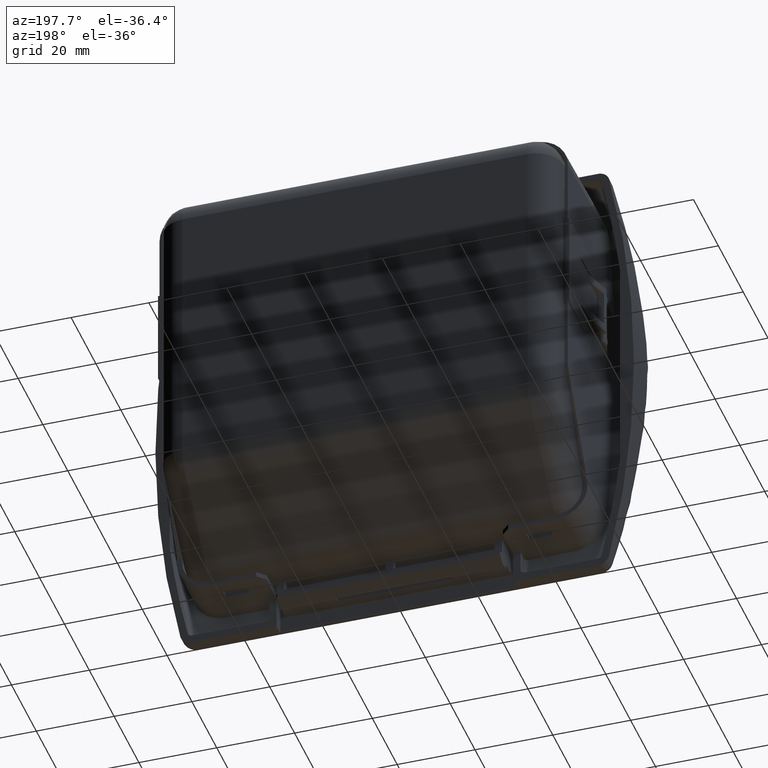
[diagram: clean part render]
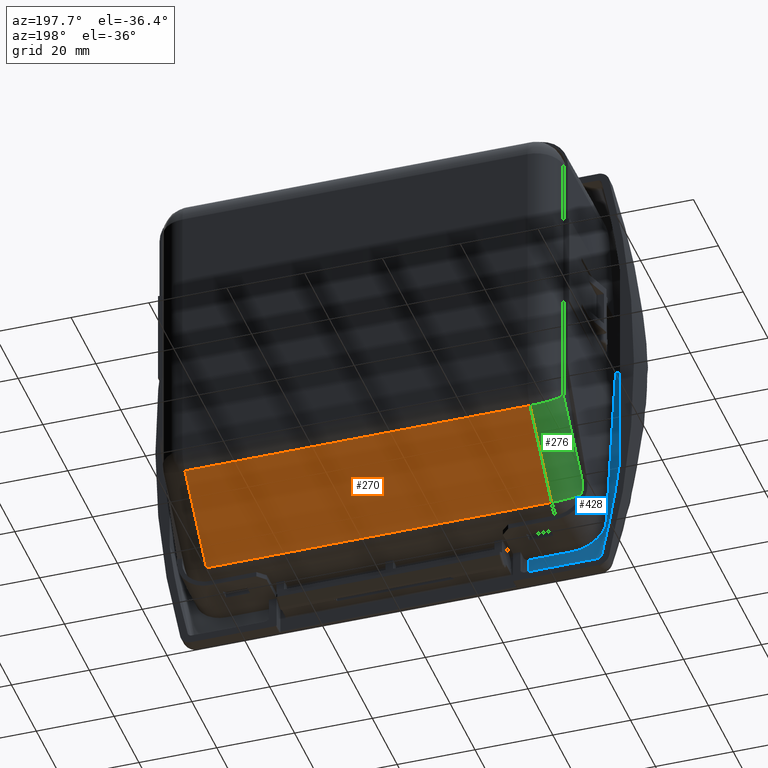
[diagram: same view with three faces highlighted in distinct colors, each labeled with its STEP entity id]
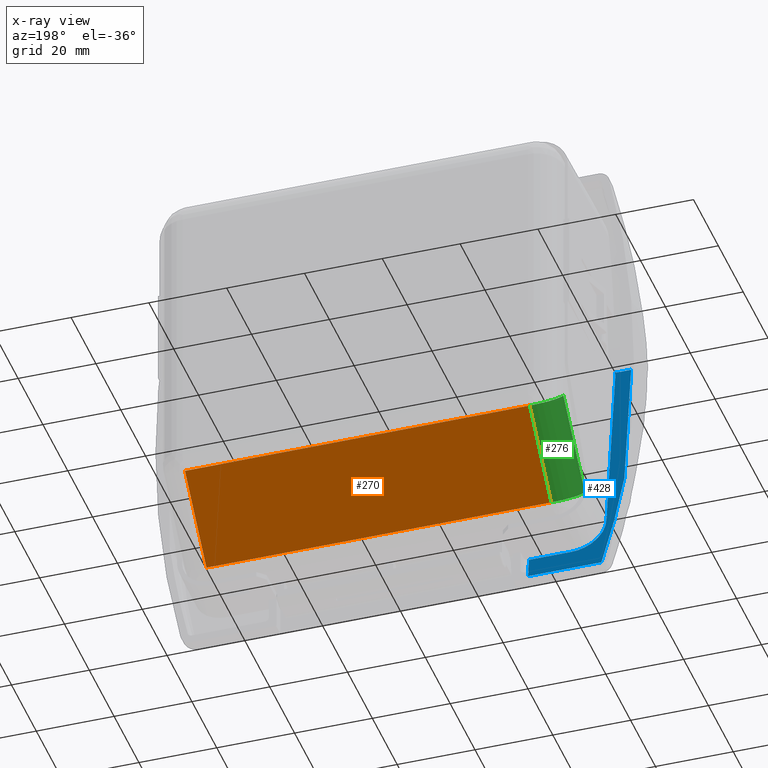
[diagram: x-ray of the same camera — body ghosted, the three highlighted faces saturated]
A machine part, auxiliary view with three faces highlighted in distinct colors.
The next image is the same camera in x-ray (body ghosted, the three faces saturated) — at least one of them is partly hidden behind the body in this view.
Their STEP definitions:

[orange] entity #270 — the highlighted planar face has unit normal (0, 0.7071, -0.7071).
#270=ADVANCED_FACE('',(#2069),#2068,.T.);
#2068=PLANE('',#8683);
#2069=FACE_OUTER_BOUND('',#8684,.T.);
#8680=CARTESIAN_POINT('',(-5.32200000000E+001,1.59203030380E+001,-5.07778179620E+001));
#8681=DIRECTION('',(0.00000000000E+000,7.07106781187E-001,-7.07106781187E-001));
#8682=DIRECTION('',(0.00000000000E+000,7.07106781187E-001,7.07106781187E-001));
#8683=AXIS2_PLACEMENT_3D('',#8680,#8681,#8682);
#8684=EDGE_LOOP('',(#15625,#15626,#15627,#15628));
#15625=ORIENTED_EDGE('',*,*,#18948,.T.);
#15626=ORIENTED_EDGE('',*,*,#18820,.F.);
#15627=ORIENTED_EDGE('',*,*,#18949,.T.);
#15628=ORIENTED_EDGE('',*,*,#18950,.T.);
#18820=EDGE_CURVE('',#21748,#21761,#21768,.T.);
#18948=EDGE_CURVE('',#22598,#21761,#22599,.T.);
#18949=EDGE_CURVE('',#21748,#22605,#22606,.T.);
#18950=EDGE_CURVE('',#22605,#22598,#22612,.T.);
#21748=VERTEX_POINT('',#33038);
#21761=VERTEX_POINT('',#33047);
#21768=LINE('',#33052,#33053);
#22598=VERTEX_POINT('',#33542);
#22599=LINE('',#33543,#33544);
#22605=VERTEX_POINT('',#33546);
#22606=LINE('',#33547,#33548);
#22612=LINE('',#33550,#33551);
#33038=CARTESIAN_POINT('',(4.43500000000E+001,1.76502525317E+001,-4.90478684683E+001));
#33047=CARTESIAN_POINT('',(4.43500000000E+001,3.49497474683E+001,-3.17483735317E+001));
#33052=CARTESIAN_POINT('',(4.43500000000E+001,1.76502525317E+001,-4.90478684683E+001));
#33053=VECTOR('',#33054,2.44651803616E+001);
#33054=DIRECTION('',(0.00000000000E+000,7.07106781187E-001,7.07106781187E-001));
#33542=CARTESIAN_POINT('',(-4.43500000000E+001,3.49497474683E+001,-3.17483735317E+001));
#33543=CARTESIAN_POINT('',(-4.43500000000E+001,3.49497474683E+001,-3.17483735317E+001));
#33544=VECTOR('',#33545,8.87000000000E+001);
#33545=DIRECTION('',(1.00000000000E+000,0.00000000000E+000,0.00000000000E+000));
#33546=CARTESIAN_POINT('',(-4.43500000000E+001,1.76502525317E+001,-4.90478684683E+001));
#33547=CARTESIAN_POINT('',(4.43500000000E+001,1.76502525317E+001,-4.90478684683E+001));
#33548=VECTOR('',#33549,8.87000000000E+001);
#33549=DIRECTION('',(-1.00000000000E+000,0.00000000000E+000,0.00000000000E+000));
#33550=CARTESIAN_POINT('',(-4.43500000000E+001,1.76502525317E+001,-4.90478684683E+001));
#33551=VECTOR('',#33552,2.44651803616E+001);
#33552=DIRECTION('',(0.00000000000E+000,7.07106781187E-001,7.07106781187E-001));

[blue] entity #428 — the highlighted planar face has unit normal (0, 0.9894, 0.1452).
#428=ADVANCED_FACE('',(#3655),#3654,.T.);
#3654=PLANE('',#10113);
#3655=FACE_OUTER_BOUND('',#10114,.T.);
#10110=CARTESIAN_POINT('',(-2.57700344491E+002,-1.95023949534E+000,-6.30606330041E+001));
#10111=DIRECTION('',(0.00000000000E+000,9.89404774411E-001,1.45183306107E-001));
#10112=DIRECTION('',(0.00000000000E+000,-1.45183306107E-001,9.89404774411E-001));
#10113=AXIS2_PLACEMENT_3D('',#10110,#10111,#10112);
#10114=EDGE_LOOP('',(#16399,#16400,#16401,#16402,#16403,#16404,#16405,#16406));
#16399=ORIENTED_EDGE('',*,*,#19422,.F.);
#16400=ORIENTED_EDGE('',*,*,#19223,.T.);
#16401=ORIENTED_EDGE('',*,*,#19423,.T.);
#16402=ORIENTED_EDGE('',*,*,#19420,.T.);
#16403=ORIENTED_EDGE('',*,*,#19424,.T.);
#16404=ORIENTED_EDGE('',*,*,#19425,.T.);
#16405=ORIENTED_EDGE('',*,*,#19426,.F.);
#16406=ORIENTED_EDGE('',*,*,#19427,.T.);
#19223=EDGE_CURVE('',#24450,#24437,#24451,.T.);
#19420=EDGE_CURVE('',#25772,#25765,#25773,.T.);
#19422=EDGE_CURVE('',#24450,#25785,#25786,.T.);
#19423=EDGE_CURVE('',#24437,#25772,#25792,.T.);
#19424=EDGE_CURVE('',#25765,#25798,#25799,.T.);
#19425=EDGE_CURVE('',#25798,#25805,#25806,.T.);
#19426=EDGE_CURVE('',#25812,#25805,#25813,.T.);
#19427=EDGE_CURVE('',#25812,#25785,#25819,.T.);
#24437=VERTEX_POINT('',#34811);
#24450=VERTEX_POINT('',#34820);
#24451=LINE('',#34821,#34822);
#25765=VERTEX_POINT('',#35622);
#25772=VERTEX_POINT('',#35627);
#25773=(BOUNDED_CURVE() B_SPLINE_CURVE(2,(#35628,#35629,#35630),.UNSPECIFIED.,.F.,.F.) B_SPLINE_CURVE_WITH_KNOTS((3,3),(-1.79245124912E+000,-1.68416097597E+000),.UNSPECIFIED.) CURVE() GEOMETRIC_REPRESENTATION_ITEM() RATIONAL_B_SPLINE_CURVE((1.00000000000E+000,9.98534510176E-001,1.00000000000E+000)) REPRESENTATION_ITEM('') );
#25785=VERTEX_POINT('',#35635);
#25786=LINE('',#35636,#35637);
#25792=LINE('',#35639,#35640);
#25798=VERTEX_POINT('',#35642);
#25799=LINE('',#35643,#35644);
#25805=VERTEX_POINT('',#35646);
#25806=LINE('',#35647,#35648);
#25812=VERTEX_POINT('',#35650);
#25813=LINE('',#35651,#35652);
#25819=(BOUNDED_CURVE() B_SPLINE_CURVE(2,(#35654,#35655,#35656),.UNSPECIFIED.,.F.,.F.) B_SPLINE_CURVE_WITH_KNOTS((3,3),(-4.71238898038E+000,-3.14159265355E+000),.UNSPECIFIED.) CURVE() GEOMETRIC_REPRESENTATION_ITEM() RATIONAL_B_SPLINE_CURVE((1.00000000000E+000,7.07106781174E-001,1.00000000000E+000)) REPRESENTATION_ITEM('') );
#34811=CARTESIAN_POINT('',(-2.31850344491E+002,-2.89162993676E+000,-5.66451833060E+001));
#34820=CARTESIAN_POINT('',(-2.31850344491E+002,-3.70504348268E+000,-5.11018790001E+001));
#34821=CARTESIAN_POINT('',(-2.31850344491E+002,-3.70504348266E+000,-5.11018790001E+001));
#34822=VECTOR('',#34823,5.60266581410E+000);
#34823=DIRECTION('',(0.00000000000E+000,1.45183306107E-001,-9.89404774411E-001));
#35622=CARTESIAN_POINT('',(-2.55350344491E+002,-6.91630914196E+000,-2.92175338891E+001));
#35627=CARTESIAN_POINT('',(-2.50712484731E+002,-2.89162993676E+000,-5.66451833060E+001));
#35628=CARTESIAN_POINT('',(-2.50712484731E+002,-2.89162993677E+000,-5.66451833060E+001));
#35629=CARTESIAN_POINT('',(-2.53774678005E+002,-4.88552726634E+000,-4.30570402167E+001));
#35630=CARTESIAN_POINT('',(-2.55350344491E+002,-6.91630914196E+000,-2.92175338891E+001));
#35635=CARTESIAN_POINT('',(-2.42850344491E+002,-3.70504348261E+000,-5.11018790006E+001));
#35636=CARTESIAN_POINT('',(-2.31850344491E+002,-3.70504348268E+000,-5.11018790001E+001));
#35637=VECTOR('',#35638,1.09999999997E+001);
#35638=DIRECTION('',(-1.00000000000E+000,5.66548828069E-012,-3.86089544184E-011));
#35639=CARTESIAN_POINT('',(-2.31850344491E+002,-2.89162993676E+000,-5.66451833060E+001));
#35640=VECTOR('',#35641,1.88621402399E+001);
#35641=DIRECTION('',(-1.00000000000E+000,0.00000000000E+000,0.00000000000E+000));
#35642=CARTESIAN_POINT('',(-2.55350344491E+002,-1.23055343510E+001,7.50931367449E+000));
#35643=CARTESIAN_POINT('',(-2.55350344491E+002,-6.91630914195E+000,-2.92175338891E+001));
#35644=VECTOR('',#35645,3.71201438617E+001);
#35645=DIRECTION('',(-4.06416619016E-012,-1.45183306107E-001,9.89404774411E-001));
#35646=CARTESIAN_POINT('',(-2.51350344491E+002,-1.23055343510E+001,7.50931367449E+000));
#35647=CARTESIAN_POINT('',(-2.55350344491E+002,-1.23055343510E+001,7.50931367449E+000));
#35648=VECTOR('',#35649,3.99999999962E+000);
#35649=DIRECTION('',(1.00000000000E+000,0.00000000000E+000,0.00000000000E+000));
#35650=CARTESIAN_POINT('',(-2.51350344491E+002,-4.95231672591E+000,-4.26018790006E+001));
#35651=CARTESIAN_POINT('',(-2.51350344491E+002,-4.95231672591E+000,-4.26018790006E+001));
#35652=VECTOR('',#35653,5.06478177295E+001);
#35653=DIRECTION('',(-4.06394646250E-012,-1.45183306107E-001,9.89404774411E-001));
#35654=CARTESIAN_POINT('',(-2.51350344491E+002,-4.95231672590E+000,-4.26018790006E+001));
#35655=CARTESIAN_POINT('',(-2.51350344491E+002,-3.70504348256E+000,-5.11018790009E+001));
#35656=CARTESIAN_POINT('',(-2.42850344491E+002,-3.70504348261E+000,-5.11018790006E+001));

[green] entity #276 — the highlighted cylindrical surface (edge-blend (fillet) strip) has radius 7 mm, axis along (0, 0.7071, 0.7071).
#276=ADVANCED_FACE('',(#2130),#2129,.T.);
#2129=CYLINDRICAL_SURFACE('',#8714,7.00000000000E+000);
#2130=FACE_OUTER_BOUND('',#8715,.T.);
#8711=CARTESIAN_POINT('',(-4.43500000000E+001,2.83993130317E+001,-2.83993130317E+001));
#8712=DIRECTION('',(-0.00000000000E+000,7.07106781187E-001,7.07106781187E-001));
#8713=DIRECTION('',(-0.00000000000E+000,-7.07106781187E-001,7.07106781187E-001));
#8714=AXIS2_PLACEMENT_3D('',#8711,#8712,#8713);
#8715=EDGE_LOOP('',(#15677,#15678,#15679,#15680));
#15677=ORIENTED_EDGE('',*,*,#18980,.T.);
#15678=ORIENTED_EDGE('',*,*,#18950,.F.);
#15679=ORIENTED_EDGE('',*,*,#18978,.F.);
#15680=ORIENTED_EDGE('',*,*,#18975,.F.);
#18950=EDGE_CURVE('',#22605,#22598,#22612,.T.);
#18975=EDGE_CURVE('',#22777,#22755,#22784,.T.);
#18978=EDGE_CURVE('',#22755,#22605,#22802,.T.);
#18980=EDGE_CURVE('',#22777,#22598,#22814,.T.);
#22598=VERTEX_POINT('',#33542);
#22605=VERTEX_POINT('',#33546);
#22612=LINE('',#33550,#33551);
#22755=VERTEX_POINT('',#33636);
#22777=VERTEX_POINT('',#33649);
#22784=LINE('',#33653,#33654);
#22802=CIRCLE('',#33667,7.00000000000E+000);
#22814=CIRCLE('',#33675,7.00000000000E+000);
#33542=CARTESIAN_POINT('',(-4.43500000000E+001,3.49497474683E+001,-3.17483735317E+001));
#33546=CARTESIAN_POINT('',(-4.43500000000E+001,1.76502525317E+001,-4.90478684683E+001));
#33550=CARTESIAN_POINT('',(-4.43500000000E+001,1.76502525317E+001,-4.90478684683E+001));
#33551=VECTOR('',#33552,2.44651803616E+001);
#33552=DIRECTION('',(0.00000000000E+000,7.07106781187E-001,7.07106781187E-001));
#33636=CARTESIAN_POINT('',(-5.13500000000E+001,1.27005050634E+001,-4.40981210000E+001));
#33649=CARTESIAN_POINT('',(-5.13500000000E+001,3.00000000000E+001,-2.67986260634E+001));
#33653=CARTESIAN_POINT('',(-5.13500000000E+001,3.00000000000E+001,-2.67986260634E+001));
#33654=VECTOR('',#33655,2.44651803616E+001);
#33655=DIRECTION('',(0.00000000000E+000,-7.07106781187E-001,-7.07106781187E-001));
#33664=CARTESIAN_POINT('',(-4.43500000000E+001,1.27005050634E+001,-4.40981210000E+001));
#33665=DIRECTION('',(0.00000000000E+000,-7.07106781187E-001,-7.07106781187E-001));
#33666=DIRECTION('',(-0.00000000000E+000,-7.07106781187E-001,7.07106781187E-001));
#33667=AXIS2_PLACEMENT_3D('',#33664,#33665,#33666);
#33672=CARTESIAN_POINT('',(-4.43500000000E+001,3.00000000000E+001,-2.67986260634E+001));
#33673=DIRECTION('',(7.00934133341E-016,-7.07106781187E-001,-7.07106781187E-001));
#33674=DIRECTION('',(-0.00000000000E+000,7.07106781187E-001,-7.07106781187E-001));
#33675=AXIS2_PLACEMENT_3D('',#33672,#33673,#33674);